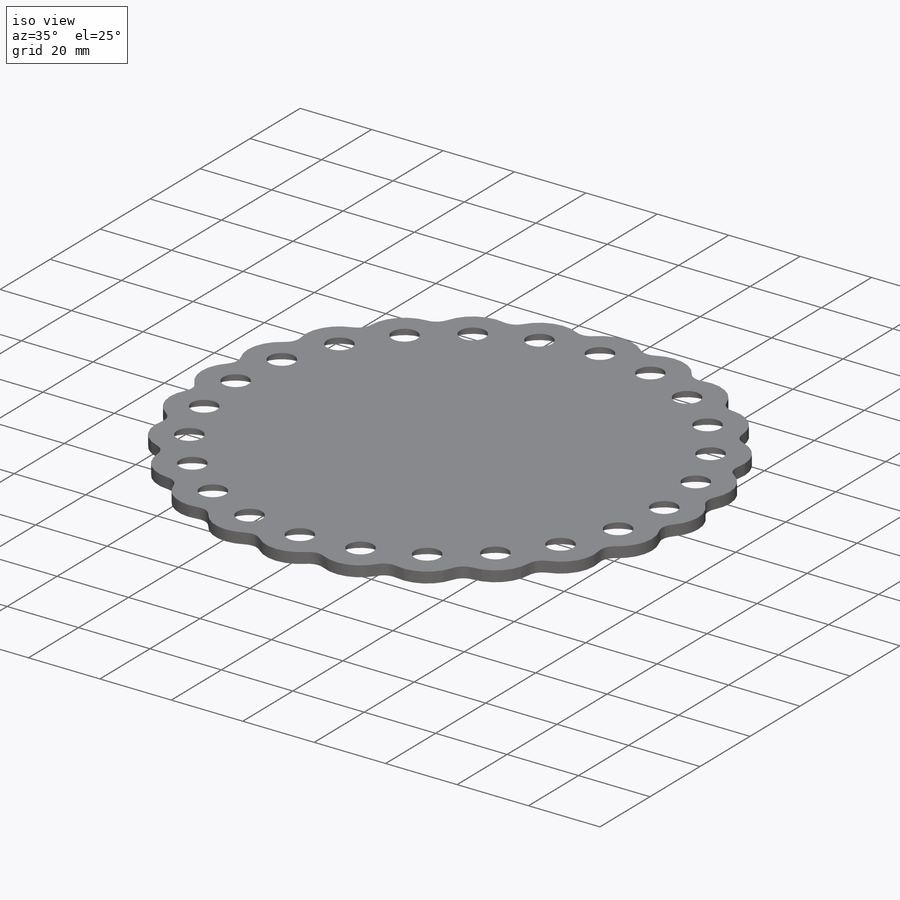
[diagram: iso view]
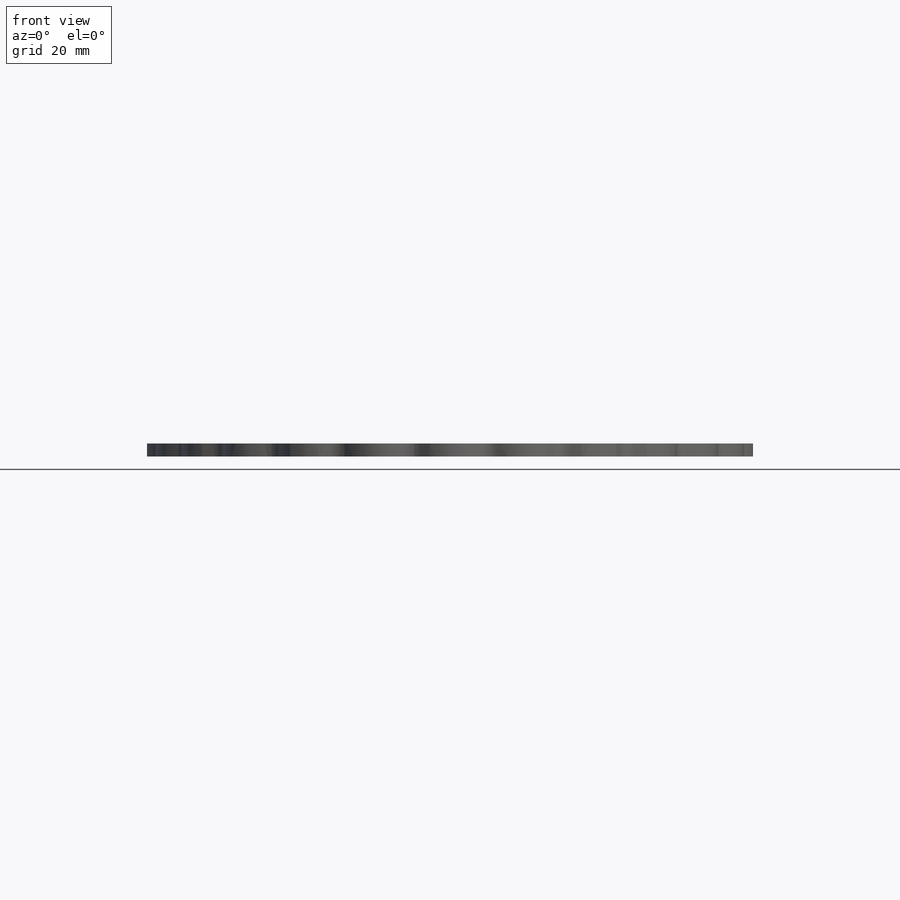
[diagram: front view]
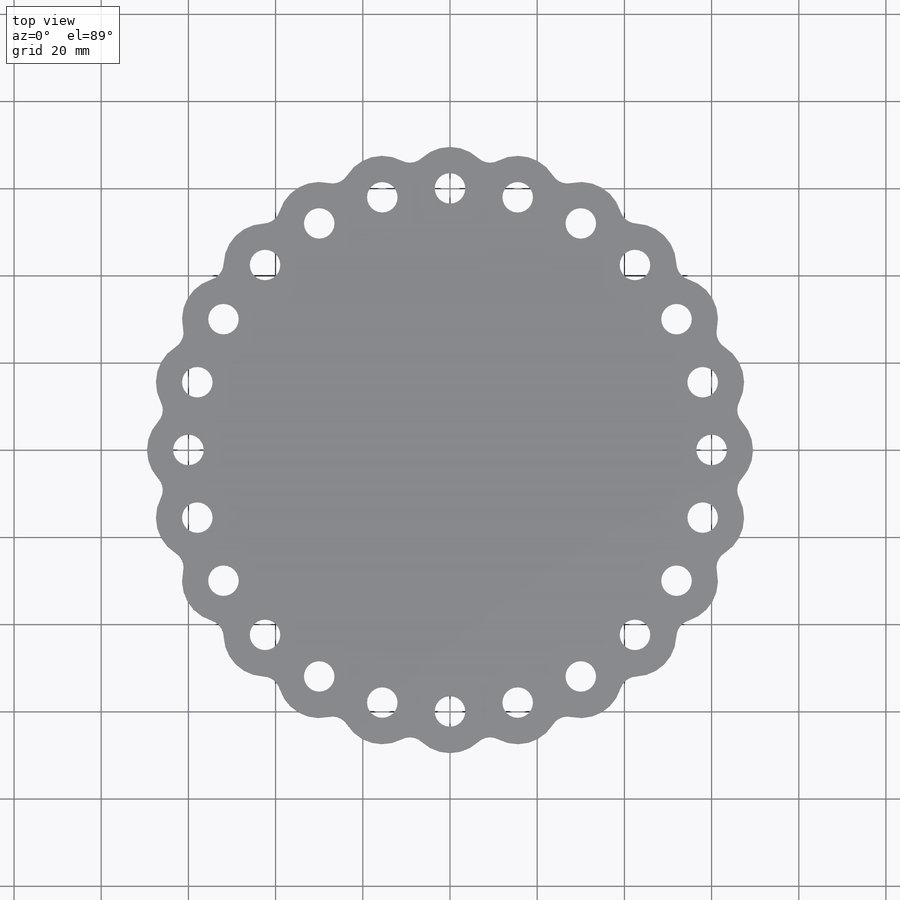
[diagram: top view]
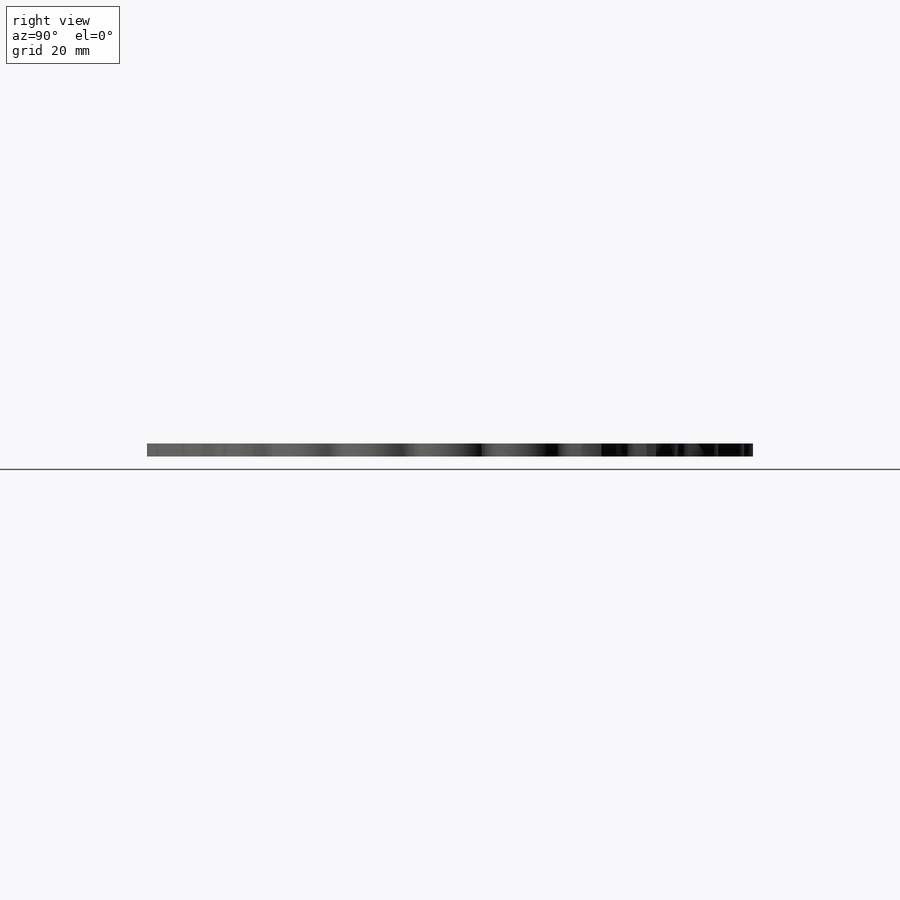
[diagram: right view]
SOLIDWORKS PART (.sldprt)
format: sldprt  version: not decoded by parser v0  size: 358,400 bytes
history: native  units: mm
features: sketch x3, cut_extrude x2, material x1, extrude x1 (+11 scaffold rows collapsed)
feature tree (18):
  scaffold x11  (default folders/planes/origin — collapsed)
  material  "3.1355 (EN-AW 2024)"
  sketch  "Эскиз1"  dims[c1.D1=7.0mm c1.D2=~89.449878mm c1.D3=120.0mm c2.D2=24.0]
  sketch  "Эскиз2"  dims[D1=13.0mm D2=120.0mm D4=60.0mm D3=24.0]
  sketch  "Эскиз3"  dims[D3=9.5mm D4=4.0mm D5=4.0mm D6=4.0mm D7=4.0mm D2=60.0mm D1=24.0]
  extrude  "Бобышка-Вытянуть2"  Depth=3mm
  cut_extrude  "Вырез-Вытянуть2"  [1 undecoded]
  cut_extrude  "Вырез-Вытянуть4"  Depth=1mm
decode coverage: 5 of 6 modeling features carry decoded parameters
note: ~ marks probable driven/reference dimensions
note: 1 parameter value undecoded
note: suppression state not decoded; provenance and decode notes live in map.json
